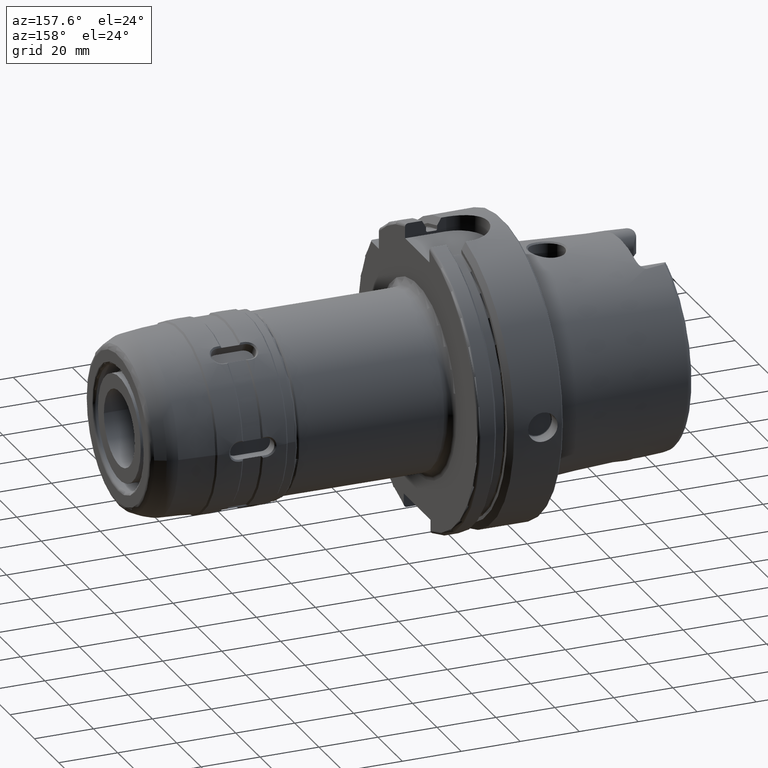
[diagram: clean part render]
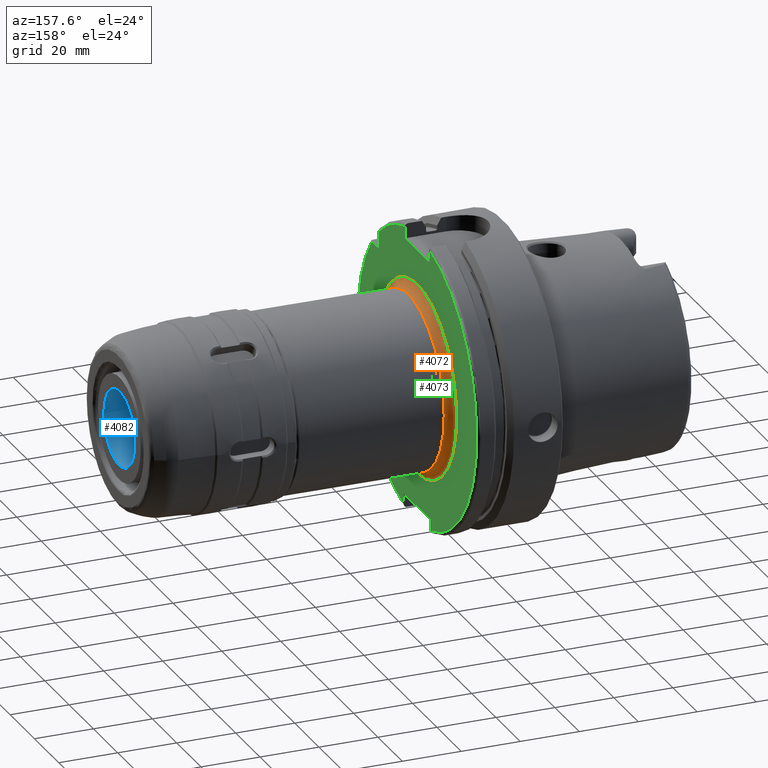
[diagram: same view with three faces highlighted in distinct colors, each labeled with its STEP entity id]
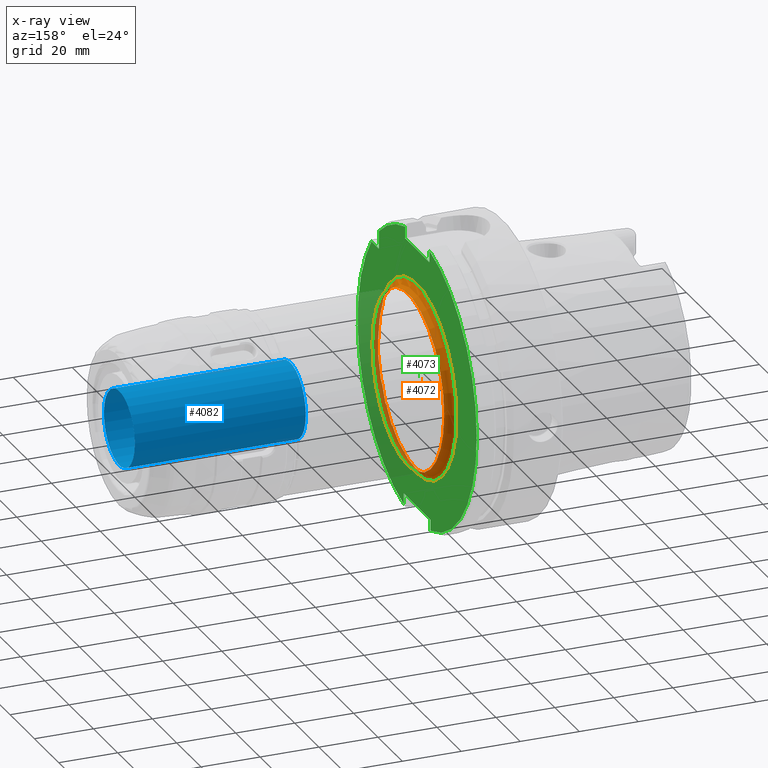
[diagram: x-ray of the same camera — body ghosted, the three highlighted faces saturated]
A machine part, auxiliary view with three faces highlighted in distinct colors.
The next image is the same camera in x-ray (body ghosted, the three faces saturated) — at least one of them is partly hidden behind the body in this view.
Their STEP definitions:

[orange] entity #4072 — the highlighted toroidal blend (fillet) surface has major radius 32.5 mm and minor (blend) radius 3 mm.
#887=FACE_OUTER_BOUND('',#1119,.T.);
#1119=EDGE_LOOP('',(#2748,#2749,#2750,#2751,#2752,#2753,#2754));
#1374=CIRCLE('',#4380,29.5);
#1375=CIRCLE('',#4381,29.5);
#1376=CIRCLE('',#4382,29.5);
#1379=CIRCLE('',#4387,3.);
#1380=CIRCLE('',#4388,32.5);
#1381=CIRCLE('',#4389,32.5);
#1637=VERTEX_POINT('',#6108);
#1638=VERTEX_POINT('',#6110);
#1639=VERTEX_POINT('',#6112);
#1642=VERTEX_POINT('',#6121);
#1643=VERTEX_POINT('',#6123);
#2081=EDGE_CURVE('',#1638,#1637,#1374,.T.);
#2082=EDGE_CURVE('',#1639,#1638,#1375,.T.);
#2083=EDGE_CURVE('',#1637,#1639,#1376,.T.);
#2086=EDGE_CURVE('',#1638,#1642,#1379,.T.);
#2087=EDGE_CURVE('',#1642,#1643,#1380,.T.);
#2088=EDGE_CURVE('',#1643,#1642,#1381,.T.);
#2748=ORIENTED_EDGE('',*,*,#2082,.T.);
#2749=ORIENTED_EDGE('',*,*,#2086,.T.);
#2750=ORIENTED_EDGE('',*,*,#2087,.T.);
#2751=ORIENTED_EDGE('',*,*,#2088,.T.);
#2752=ORIENTED_EDGE('',*,*,#2086,.F.);
#2753=ORIENTED_EDGE('',*,*,#2081,.T.);
#2754=ORIENTED_EDGE('',*,*,#2083,.T.);
#4040=TOROIDAL_SURFACE('',#4386,32.5,3.);
#4072=ADVANCED_FACE('',(#887),#4040,.F.);
#4380=AXIS2_PLACEMENT_3D('',#6111,#4885,#4886);
#4381=AXIS2_PLACEMENT_3D('',#6113,#4887,#4888);
#4382=AXIS2_PLACEMENT_3D('',#6114,#4889,#4890);
#4386=AXIS2_PLACEMENT_3D('',#6120,#4897,#4898);
#4387=AXIS2_PLACEMENT_3D('',#6122,#4899,#4900);
#4388=AXIS2_PLACEMENT_3D('',#6124,#4901,#4902);
#4389=AXIS2_PLACEMENT_3D('',#6125,#4903,#4904);
#4885=DIRECTION('center_axis',(-1.,0.,0.));
#4886=DIRECTION('ref_axis',(0.,-1.,-1.22464679914735E-16));
#4887=DIRECTION('center_axis',(-1.,0.,0.));
#4888=DIRECTION('ref_axis',(0.,-1.,-1.22464679914735E-16));
#4889=DIRECTION('center_axis',(-1.,0.,0.));
#4890=DIRECTION('ref_axis',(0.,-1.,-1.22464679914735E-16));
#4897=DIRECTION('center_axis',(-1.,0.,0.));
#4898=DIRECTION('ref_axis',(0.,0.,1.));
#4899=DIRECTION('center_axis',(0.,-1.,1.22464679914735E-16));
#4900=DIRECTION('ref_axis',(0.,-1.22464679914735E-16,-1.));
#4901=DIRECTION('center_axis',(1.,0.,0.));
#4902=DIRECTION('ref_axis',(0.,-1.,-1.22464679914735E-16));
#4903=DIRECTION('center_axis',(1.,0.,0.));
#4904=DIRECTION('ref_axis',(0.,-1.,-1.22464679914735E-16));
#6108=CARTESIAN_POINT('',(32.,-29.5,-3.61270805748469E-15));
#6110=CARTESIAN_POINT('',(32.,-3.61270805748469E-15,-29.5));
#6111=CARTESIAN_POINT('Origin',(32.,0.,0.));
#6112=CARTESIAN_POINT('',(32.,29.5,0.));
#6113=CARTESIAN_POINT('Origin',(32.,0.,0.));
#6114=CARTESIAN_POINT('Origin',(32.,0.,0.));
#6120=CARTESIAN_POINT('Origin',(32.,0.,0.));
#6121=CARTESIAN_POINT('',(29.,-3.9801020972289E-15,-32.5));
#6122=CARTESIAN_POINT('Origin',(32.,-3.9801020972289E-15,-32.5));
#6123=CARTESIAN_POINT('',(29.,32.5,7.9602041944578E-15));
#6124=CARTESIAN_POINT('Origin',(29.,0.,0.));
#6125=CARTESIAN_POINT('Origin',(29.,0.,0.));

[blue] entity #4082 — the highlighted cylindrical surface (bore or boss wall) has radius 12.7 mm, axis along (1, 0, 0).
#352=LINE('',#6195,#593);
#593=VECTOR('',#4975,12.7);
#825=CYLINDRICAL_SURFACE('',#4418,12.7);
#897=FACE_OUTER_BOUND('',#1134,.T.);
#1134=EDGE_LOOP('',(#2805,#2806,#2807,#2808,#2809,#2810));
#1399=CIRCLE('',#4416,12.7);
#1400=CIRCLE('',#4417,12.7);
#1401=CIRCLE('',#4419,12.7);
#1402=CIRCLE('',#4420,12.7);
#1669=VERTEX_POINT('',#6189);
#1670=VERTEX_POINT('',#6190);
#1671=VERTEX_POINT('',#6194);
#1672=VERTEX_POINT('',#6196);
#2118=EDGE_CURVE('',#1669,#1670,#1399,.T.);
#2119=EDGE_CURVE('',#1670,#1669,#1400,.T.);
#2120=EDGE_CURVE('',#1670,#1671,#352,.T.);
#2121=EDGE_CURVE('',#1672,#1671,#1401,.T.);
#2122=EDGE_CURVE('',#1671,#1672,#1402,.T.);
#2805=ORIENTED_EDGE('',*,*,#2118,.T.);
#2806=ORIENTED_EDGE('',*,*,#2120,.T.);
#2807=ORIENTED_EDGE('',*,*,#2121,.F.);
#2808=ORIENTED_EDGE('',*,*,#2122,.F.);
#2809=ORIENTED_EDGE('',*,*,#2120,.F.);
#2810=ORIENTED_EDGE('',*,*,#2119,.T.);
#4082=ADVANCED_FACE('',(#897),#825,.F.);
#4416=AXIS2_PLACEMENT_3D('',#6191,#4969,#4970);
#4417=AXIS2_PLACEMENT_3D('',#6192,#4971,#4972);
#4418=AXIS2_PLACEMENT_3D('',#6193,#4973,#4974);
#4419=AXIS2_PLACEMENT_3D('',#6197,#4976,#4977);
#4420=AXIS2_PLACEMENT_3D('',#6198,#4978,#4979);
#4969=DIRECTION('center_axis',(1.,0.,0.));
#4970=DIRECTION('ref_axis',(0.,0.,-1.));
#4971=DIRECTION('center_axis',(1.,0.,0.));
#4972=DIRECTION('ref_axis',(0.,0.,-1.));
#4973=DIRECTION('center_axis',(1.,0.,0.));
#4974=DIRECTION('ref_axis',(0.,1.,0.));
#4975=DIRECTION('',(-1.,0.,0.));
#4976=DIRECTION('center_axis',(1.,0.,0.));
#4977=DIRECTION('ref_axis',(0.,0.,-1.));
#4978=DIRECTION('center_axis',(1.,0.,0.));
#4979=DIRECTION('ref_axis',(0.,0.,-1.));
#6189=CARTESIAN_POINT('',(130.,12.7,0.));
#6190=CARTESIAN_POINT('',(130.,-12.7,-1.55530143491714E-15));
#6191=CARTESIAN_POINT('Origin',(130.,0.,0.));
#6192=CARTESIAN_POINT('Origin',(130.,0.,0.));
#6193=CARTESIAN_POINT('Origin',(101.,0.,0.));
#6194=CARTESIAN_POINT('',(72.,-12.7,-1.55530143491714E-15));
#6195=CARTESIAN_POINT('',(101.,-12.7,-1.55530143491714E-15));
#6196=CARTESIAN_POINT('',(72.,12.7,0.));
#6197=CARTESIAN_POINT('Origin',(72.,0.,0.));
#6198=CARTESIAN_POINT('Origin',(72.,0.,0.));

[green] entity #4073 — the highlighted planar face has unit normal (1, 0, 0).
#227=FACE_BOUND('',#1121,.T.);
#249=PLANE('',#4390);
#340=LINE('',#6129,#581);
#341=LINE('',#6133,#582);
#342=LINE('',#6135,#583);
#343=LINE('',#6137,#584);
#344=LINE('',#6141,#585);
#345=LINE('',#6143,#586);
#346=LINE('',#6145,#587);
#347=LINE('',#6148,#588);
#581=VECTOR('',#4907,10.);
#582=VECTOR('',#4910,10.);
#583=VECTOR('',#4911,10.);
#584=VECTOR('',#4912,10.);
#585=VECTOR('',#4915,10.);
#586=VECTOR('',#4916,10.);
#587=VECTOR('',#4917,10.);
#588=VECTOR('',#4920,10.);
#888=FACE_OUTER_BOUND('',#1120,.T.);
#1120=EDGE_LOOP('',(#2755,#2756,#2757,#2758,#2759,#2760,#2761,#2762,#2763,
#2764,#2765));
#1121=EDGE_LOOP('',(#2766,#2767));
#1380=CIRCLE('',#4388,32.5);
#1381=CIRCLE('',#4389,32.5);
#1382=CIRCLE('',#4391,49.);
#1383=CIRCLE('',#4392,49.);
#1384=CIRCLE('',#4393,49.);
#1642=VERTEX_POINT('',#6121);
#1643=VERTEX_POINT('',#6123);
#1644=VERTEX_POINT('',#6127);
#1645=VERTEX_POINT('',#6128);
#1646=VERTEX_POINT('',#6130);
#1647=VERTEX_POINT('',#6132);
#1648=VERTEX_POINT('',#6134);
#1649=VERTEX_POINT('',#6136);
#1650=VERTEX_POINT('',#6138);
#1651=VERTEX_POINT('',#6140);
#1652=VERTEX_POINT('',#6142);
#1653=VERTEX_POINT('',#6144);
#1654=VERTEX_POINT('',#6146);
#2087=EDGE_CURVE('',#1642,#1643,#1380,.T.);
#2088=EDGE_CURVE('',#1643,#1642,#1381,.T.);
#2089=EDGE_CURVE('',#1644,#1645,#340,.T.);
#2090=EDGE_CURVE('',#1645,#1646,#1382,.T.);
#2091=EDGE_CURVE('',#1646,#1647,#341,.T.);
#2092=EDGE_CURVE('',#1647,#1648,#342,.T.);
#2093=EDGE_CURVE('',#1648,#1649,#343,.T.);
#2094=EDGE_CURVE('',#1649,#1650,#1383,.T.);
#2095=EDGE_CURVE('',#1650,#1651,#344,.T.);
#2096=EDGE_CURVE('',#1651,#1652,#345,.T.);
#2097=EDGE_CURVE('',#1652,#1653,#346,.T.);
#2098=EDGE_CURVE('',#1653,#1654,#1384,.T.);
#2099=EDGE_CURVE('',#1654,#1644,#347,.T.);
#2755=ORIENTED_EDGE('',*,*,#2089,.T.);
#2756=ORIENTED_EDGE('',*,*,#2090,.T.);
#2757=ORIENTED_EDGE('',*,*,#2091,.T.);
#2758=ORIENTED_EDGE('',*,*,#2092,.T.);
#2759=ORIENTED_EDGE('',*,*,#2093,.T.);
#2760=ORIENTED_EDGE('',*,*,#2094,.T.);
#2761=ORIENTED_EDGE('',*,*,#2095,.T.);
#2762=ORIENTED_EDGE('',*,*,#2096,.T.);
#2763=ORIENTED_EDGE('',*,*,#2097,.T.);
#2764=ORIENTED_EDGE('',*,*,#2098,.T.);
#2765=ORIENTED_EDGE('',*,*,#2099,.T.);
#2766=ORIENTED_EDGE('',*,*,#2088,.F.);
#2767=ORIENTED_EDGE('',*,*,#2087,.F.);
#4073=ADVANCED_FACE('',(#888,#227),#249,.T.);
#4388=AXIS2_PLACEMENT_3D('',#6124,#4901,#4902);
#4389=AXIS2_PLACEMENT_3D('',#6125,#4903,#4904);
#4390=AXIS2_PLACEMENT_3D('',#6126,#4905,#4906);
#4391=AXIS2_PLACEMENT_3D('',#6131,#4908,#4909);
#4392=AXIS2_PLACEMENT_3D('',#6139,#4913,#4914);
#4393=AXIS2_PLACEMENT_3D('',#6147,#4918,#4919);
#4901=DIRECTION('center_axis',(1.,0.,0.));
#4902=DIRECTION('ref_axis',(0.,-1.,-1.22464679914735E-16));
#4903=DIRECTION('center_axis',(1.,0.,0.));
#4904=DIRECTION('ref_axis',(0.,-1.,-1.22464679914735E-16));
#4905=DIRECTION('center_axis',(1.,0.,0.));
#4906=DIRECTION('ref_axis',(0.,0.,-1.));
#4907=DIRECTION('',(0.,-1.,0.));
#4908=DIRECTION('center_axis',(1.,0.,0.));
#4909=DIRECTION('ref_axis',(0.,0.,-1.));
#4910=DIRECTION('',(0.,0.,1.));
#4911=DIRECTION('',(0.,1.,0.));
#4912=DIRECTION('',(0.,0.,-1.));
#4913=DIRECTION('center_axis',(1.,0.,0.));
#4914=DIRECTION('ref_axis',(0.,0.,-1.));
#4915=DIRECTION('',(0.,0.,-1.));
#4916=DIRECTION('',(0.,-1.,0.));
#4917=DIRECTION('',(0.,0.,1.));
#4918=DIRECTION('center_axis',(1.,0.,0.));
#4919=DIRECTION('ref_axis',(0.,0.,-1.));
#4920=DIRECTION('',(0.,0.,-1.));
#6121=CARTESIAN_POINT('',(29.,-3.9801020972289E-15,-32.5));
#6123=CARTESIAN_POINT('',(29.,32.5,7.9602041944578E-15));
#6124=CARTESIAN_POINT('Origin',(29.,0.,0.));
#6125=CARTESIAN_POINT('Origin',(29.,0.,0.));
#6126=CARTESIAN_POINT('Origin',(29.,0.,0.));
#6127=CARTESIAN_POINT('',(29.,-31.5,31.5));
#6128=CARTESIAN_POINT('',(29.,-37.5333185316726,31.5));
#6129=CARTESIAN_POINT('',(29.,-18.25,31.5));
#6130=CARTESIAN_POINT('',(29.,-11.,-47.7493455452533));
#6131=CARTESIAN_POINT('Origin',(29.,0.,0.));
#6132=CARTESIAN_POINT('',(29.,-11.,-44.));
#6133=CARTESIAN_POINT('',(29.,-11.,-22.));
#6134=CARTESIAN_POINT('',(29.,11.,-44.));
#6135=CARTESIAN_POINT('',(29.,-5.55111512312578E-16,-44.));
#6136=CARTESIAN_POINT('',(29.,11.,-47.7493455452533));
#6137=CARTESIAN_POINT('',(29.,11.,-22.));
#6138=CARTESIAN_POINT('',(29.,10.,47.9687398208458));
#6139=CARTESIAN_POINT('Origin',(29.,0.,0.));
#6140=CARTESIAN_POINT('',(29.,10.,44.));
#6141=CARTESIAN_POINT('',(29.,10.,22.));
#6142=CARTESIAN_POINT('',(29.,-10.,44.));
#6143=CARTESIAN_POINT('',(29.,0.,44.));
#6144=CARTESIAN_POINT('',(29.,-10.,47.9687398208458));
#6145=CARTESIAN_POINT('',(29.,-10.,22.));
#6146=CARTESIAN_POINT('',(29.,-31.5,37.5333185316726));
#6147=CARTESIAN_POINT('Origin',(29.,0.,0.));
#6148=CARTESIAN_POINT('',(29.,-31.5,15.75));